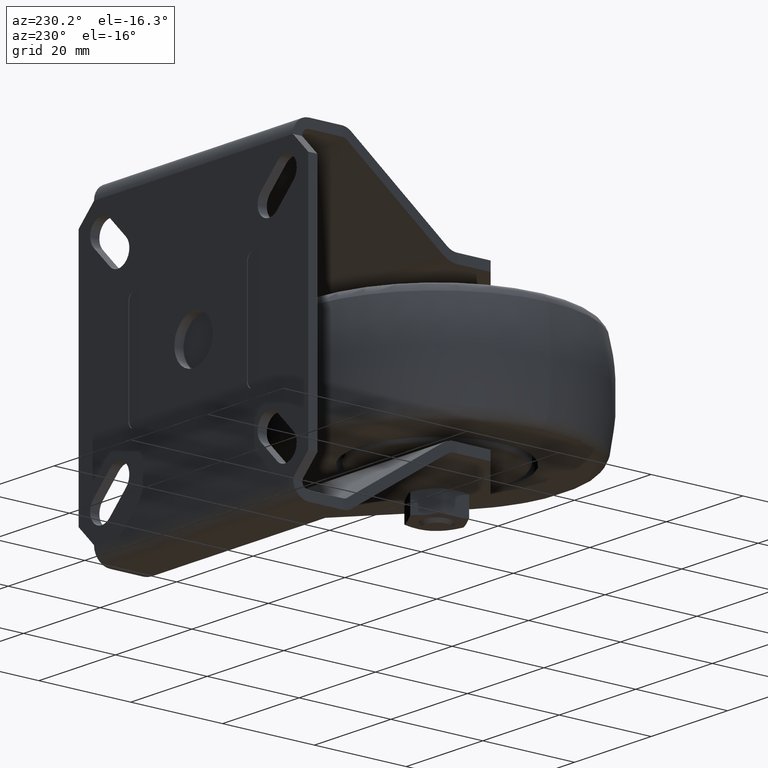
[diagram: clean part render]
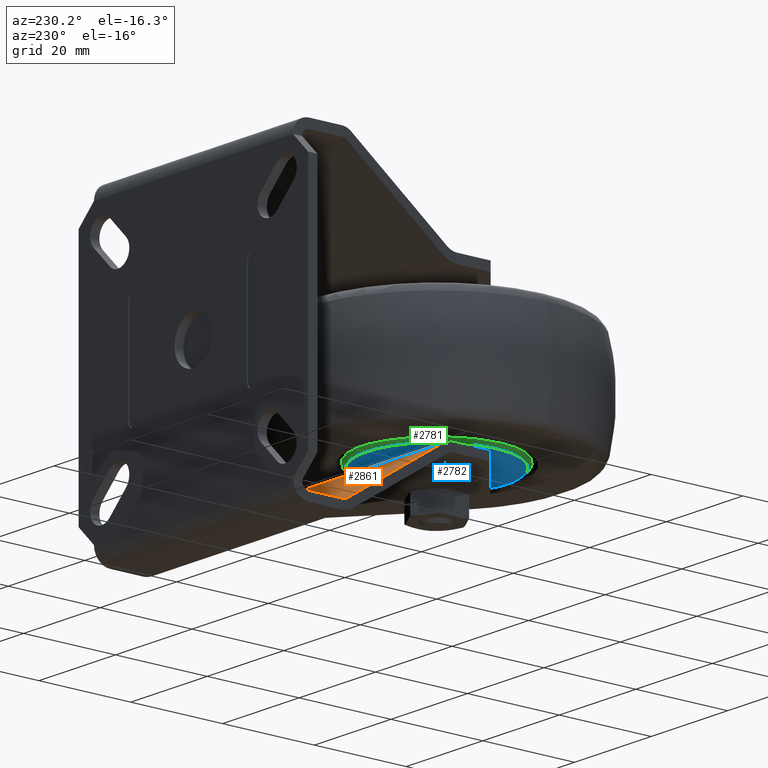
[diagram: same view with three faces highlighted in distinct colors, each labeled with its STEP entity id]
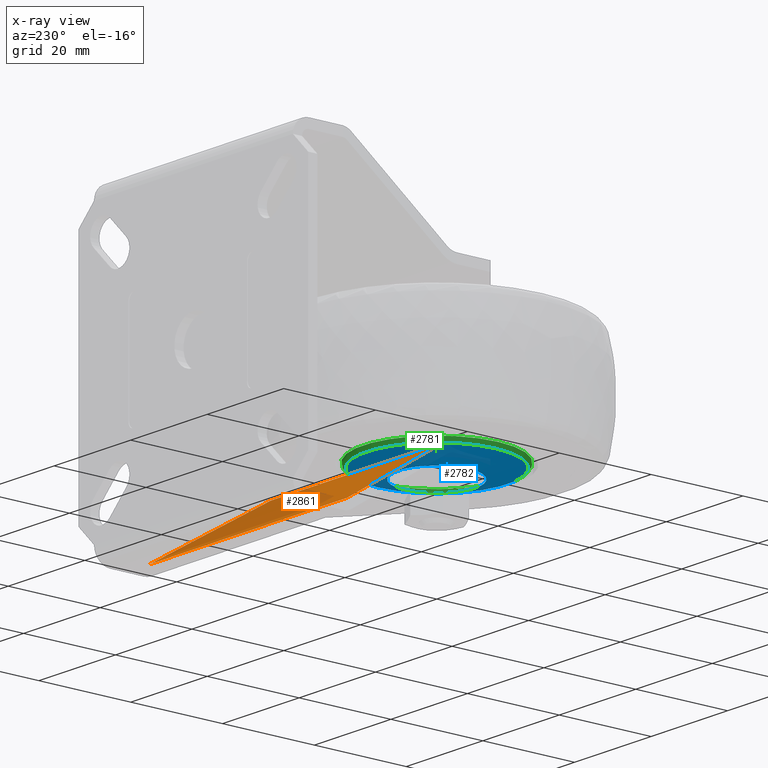
[diagram: x-ray of the same camera — body ghosted, the three highlighted faces saturated]
A machine part, auxiliary view with three faces highlighted in distinct colors.
The next image is the same camera in x-ray (body ghosted, the three faces saturated) — at least one of them is partly hidden behind the body in this view.
Their STEP definitions:

[orange] entity #2861 — the highlighted planar face has unit normal (0, -0.5299, -0.848).
#235=LINE('',#5141,#421);
#236=LINE('',#5146,#422);
#237=LINE('',#5147,#423);
#238=LINE('',#5148,#424);
#421=VECTOR('',#4122,1000.);
#422=VECTOR('',#4127,1000.);
#423=VECTOR('',#4128,1000.);
#424=VECTOR('',#4129,1000.);
#623=PLANE('',#3384);
#780=FACE_OUTER_BOUND('',#992,.T.);
#992=EDGE_LOOP('',(#2420,#2421,#2422,#2423));
#1468=VERTEX_POINT('',#5138);
#1469=VERTEX_POINT('',#5140);
#1470=VERTEX_POINT('',#5144);
#1471=VERTEX_POINT('',#5145);
#1814=EDGE_CURVE('',#1469,#1468,#235,.T.);
#1816=EDGE_CURVE('',#1470,#1471,#236,.T.);
#1817=EDGE_CURVE('',#1470,#1469,#237,.T.);
#1818=EDGE_CURVE('',#1468,#1471,#238,.T.);
#2420=ORIENTED_EDGE('',*,*,#1816,.F.);
#2421=ORIENTED_EDGE('',*,*,#1817,.T.);
#2422=ORIENTED_EDGE('',*,*,#1814,.T.);
#2423=ORIENTED_EDGE('',*,*,#1818,.T.);
#2861=ADVANCED_FACE('',(#780),#623,.F.);
#3384=AXIS2_PLACEMENT_3D('',#5143,#4125,#4126);
#4122=DIRECTION('',(-1.,0.,0.));
#4125=DIRECTION('center_axis',(0.,-0.529919264233205,-0.848048096156426));
#4126=DIRECTION('ref_axis',(0.,0.848048096156426,-0.529919264233205));
#4127=DIRECTION('',(-1.,0.,0.));
#4128=DIRECTION('',(0.119429552107659,0.841978342358993,-0.526126461111553));
#4129=DIRECTION('',(0.119429552107659,-0.841978342358993,0.526126461111553));
#5138=CARTESIAN_POINT('',(-25.856332342492,41.0871430145688,-31.1960961923129));
#5140=CARTESIAN_POINT('',(25.856332342492,41.0871430145688,-31.1960961923129));
#5141=CARTESIAN_POINT('',(30.,41.0871430145688,-31.1960961923129));
#5143=CARTESIAN_POINT('Origin',(30.,41.0871430145688,-31.1960961923129));
#5144=CARTESIAN_POINT('',(22.5003094436464,17.4271815777072,-16.4117114230615));
#5145=CARTESIAN_POINT('',(-22.5003094436464,17.4271815777072,-16.4117114230615));
#5146=CARTESIAN_POINT('',(30.,17.4271815777072,-16.4117114230615));
#5147=CARTESIAN_POINT('',(25.9154352059987,41.5038182022909,-31.4564637468215));
#5148=CARTESIAN_POINT('',(-25.0596301310006,35.4703924235539,-27.6863608906691));

[blue] entity #2782 — the highlighted conical surface has half-angle 74 deg.
#139=LINE('',#4581,#325);
#325=VECTOR('',#3636,15.275637355817);
#701=FACE_OUTER_BOUND('',#885,.T.);
#885=EDGE_LOOP('',(#2052,#2053,#2054,#2055));
#1089=CIRCLE('',#3186,15.275637355817);
#1090=CIRCLE('',#3188,8.3175482605573);
#1298=VERTEX_POINT('',#4576);
#1299=VERTEX_POINT('',#4580);
#1579=EDGE_CURVE('',#1298,#1298,#1089,.T.);
#1580=EDGE_CURVE('',#1298,#1299,#139,.T.);
#1581=EDGE_CURVE('',#1299,#1299,#1090,.T.);
#2052=ORIENTED_EDGE('',*,*,#1579,.F.);
#2053=ORIENTED_EDGE('',*,*,#1580,.T.);
#2054=ORIENTED_EDGE('',*,*,#1581,.T.);
#2055=ORIENTED_EDGE('',*,*,#1580,.F.);
#2728=CONICAL_SURFACE('',#3187,15.275637355817,1.2915436464758);
#2782=ADVANCED_FACE('',(#701),#2728,.T.);
#3186=AXIS2_PLACEMENT_3D('',#4578,#3632,#3633);
#3187=AXIS2_PLACEMENT_3D('',#4579,#3634,#3635);
#3188=AXIS2_PLACEMENT_3D('',#4582,#3637,#3638);
#3632=DIRECTION('center_axis',(1.,0.,0.));
#3633=DIRECTION('ref_axis',(0.,0.,-1.));
#3634=DIRECTION('center_axis',(1.,0.,0.));
#3635=DIRECTION('ref_axis',(0.,0.,-1.));
#3636=DIRECTION('',(-0.275637355817003,1.17720605907382E-16,-0.961261695938318));
#3637=DIRECTION('center_axis',(1.,0.,0.));
#3638=DIRECTION('ref_axis',(0.,0.,-1.));
#4576=CARTESIAN_POINT('',(2.01456909379523,-1.8707260392737E-15,15.275637355817));
#4578=CARTESIAN_POINT('Origin',(2.01456909379523,0.,0.));
#4579=CARTESIAN_POINT('Origin',(2.01456909379523,0.,0.));
#4580=CARTESIAN_POINT('',(0.0193691520308048,-1.01860588540451E-15,8.31754826055731));
#4581=CARTESIAN_POINT('',(2.01456909379523,-1.8707260392737E-15,15.275637355817));
#4582=CARTESIAN_POINT('Origin',(0.0193691520308402,0.,0.));

[green] entity #2781 — the highlighted toroidal blend (fillet) surface has major radius 15 mm and minor (blend) radius 1 mm.
#112=TOROIDAL_SURFACE('',#3184,15.,0.999999999999999);
#700=FACE_OUTER_BOUND('',#884,.T.);
#884=EDGE_LOOP('',(#2048,#2049,#2050,#2051));
#1087=CIRCLE('',#3183,16.);
#1088=CIRCLE('',#3185,0.999999999999999);
#1089=CIRCLE('',#3186,15.275637355817);
#1297=VERTEX_POINT('',#4572);
#1298=VERTEX_POINT('',#4576);
#1577=EDGE_CURVE('',#1297,#1297,#1087,.T.);
#1578=EDGE_CURVE('',#1297,#1298,#1088,.T.);
#1579=EDGE_CURVE('',#1298,#1298,#1089,.T.);
#2048=ORIENTED_EDGE('',*,*,#1577,.F.);
#2049=ORIENTED_EDGE('',*,*,#1578,.T.);
#2050=ORIENTED_EDGE('',*,*,#1579,.T.);
#2051=ORIENTED_EDGE('',*,*,#1578,.F.);
#2781=ADVANCED_FACE('',(#700),#112,.T.);
#3183=AXIS2_PLACEMENT_3D('',#4574,#3626,#3627);
#3184=AXIS2_PLACEMENT_3D('',#4575,#3628,#3629);
#3185=AXIS2_PLACEMENT_3D('',#4577,#3630,#3631);
#3186=AXIS2_PLACEMENT_3D('',#4578,#3632,#3633);
#3626=DIRECTION('center_axis',(1.,0.,0.));
#3627=DIRECTION('ref_axis',(0.,0.,-1.));
#3628=DIRECTION('center_axis',(1.,0.,0.));
#3629=DIRECTION('ref_axis',(0.,0.,-1.));
#3630=DIRECTION('center_axis',(0.,-1.,-1.22464679914735E-16));
#3631=DIRECTION('ref_axis',(0.,-1.22464679914735E-16,1.));
#3632=DIRECTION('center_axis',(1.,0.,0.));
#3633=DIRECTION('ref_axis',(0.,0.,-1.));
#4572=CARTESIAN_POINT('',(2.97583078973356,-1.95943487863577E-15,16.));
#4574=CARTESIAN_POINT('Origin',(2.97583078973356,0.,0.));
#4575=CARTESIAN_POINT('Origin',(2.97583078973355,0.,0.));
#4576=CARTESIAN_POINT('',(2.01456909379523,-1.8707260392737E-15,15.275637355817));
#4577=CARTESIAN_POINT('Origin',(2.97583078973355,-1.83697019872103E-15,
15.));
#4578=CARTESIAN_POINT('Origin',(2.01456909379523,0.,0.));